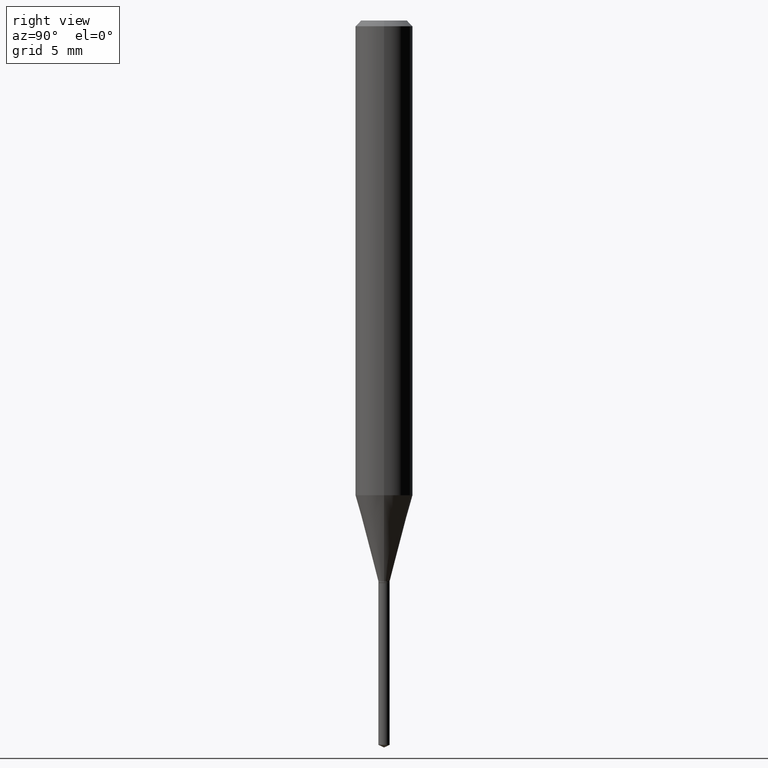
[diagram: clean part render]
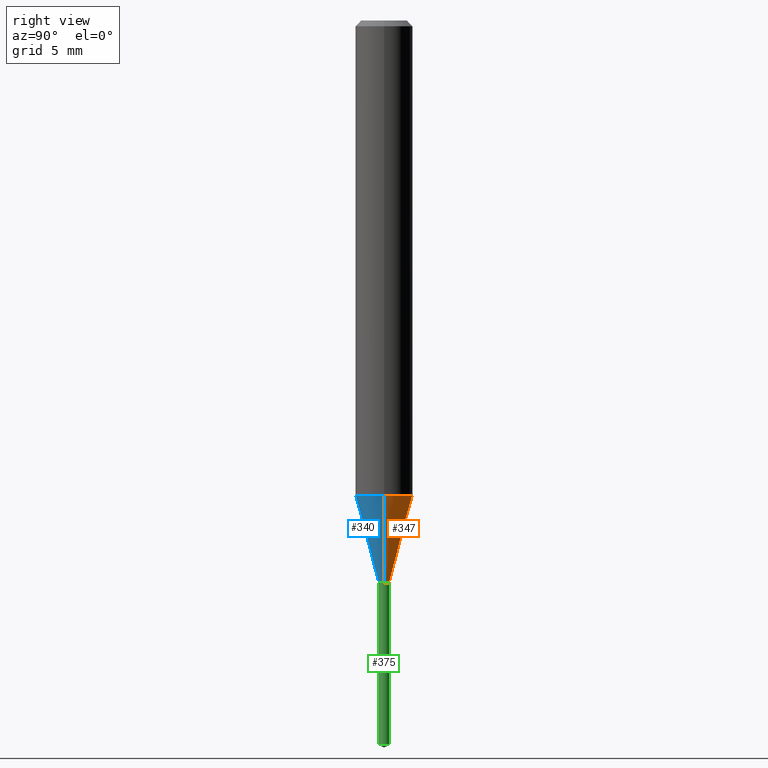
[diagram: same view with three faces highlighted in distinct colors, each labeled with its STEP entity id]
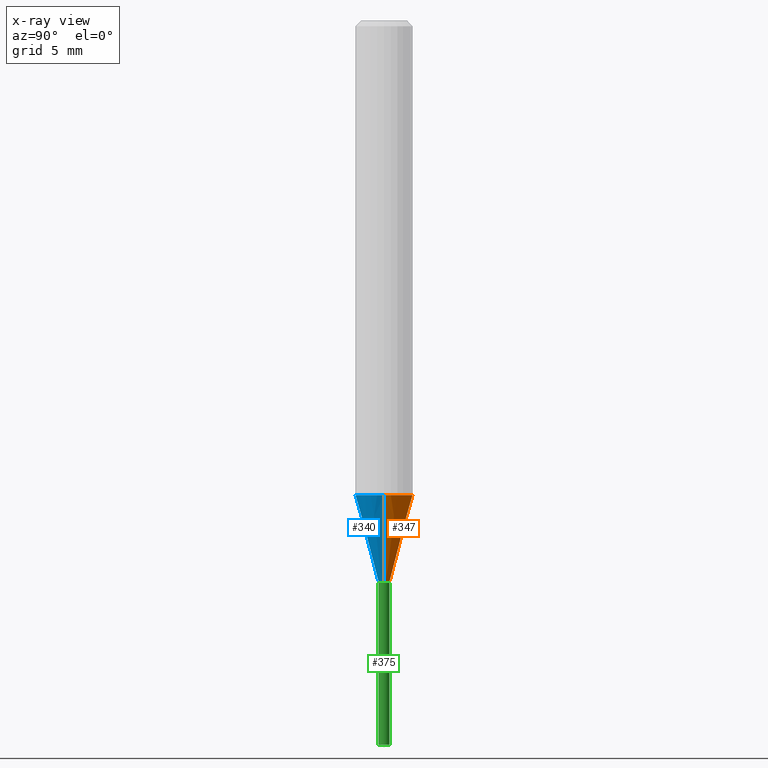
[diagram: x-ray of the same camera — body ghosted, the three highlighted faces saturated]
A machine part, right view with three faces highlighted in distinct colors.
The next image is the same camera in x-ray (body ghosted, the three faces saturated) — at least one of them is partly hidden behind the body in this view.
Their STEP definitions:

[orange] entity #347 — the highlighted conical surface has half-angle 15 deg.
#4 = CARTESIAN_POINT ( 'NONE',  ( -0.05905000000000011628, -2.991302175709703364E-15, -0.9769141891808567069 ) ) ;
#22 = CARTESIAN_POINT ( 'NONE',  ( -0.01159999999999999920, -3.946746507676818365E-15, -1.153999999999999915 ) ) ;
#27 = EDGE_CURVE ( 'NONE', #60, #389, #253, .T. ) ;
#32 = DIRECTION ( 'NONE',  ( 1.000000000000000000, -6.982962677686266711E-15, 0.000000000000000000 ) ) ;
#45 = ORIENTED_EDGE ( 'NONE', *, *, #481, .F. ) ;
#46 = LINE ( 'NONE', #266, #399 ) ;
#54 = DIRECTION ( 'NONE',  ( 1.000000000000000000, -6.982962677686266711E-15, 0.000000000000000000 ) ) ;
#60 = VERTEX_POINT ( 'NONE', #62 ) ;
#62 = CARTESIAN_POINT ( 'NONE',  ( 0.01159999999999999920, -4.110171832086150508E-15, -1.153999999999999915 ) ) ;
#66 = DIRECTION ( 'NONE',  ( -0.2588190451025213501, 5.211531920934551042E-15, 0.9659258262890682012 ) ) ;
#88 = EDGE_CURVE ( 'NONE', #389, #167, #216, .T. ) ;
#164 = DIRECTION ( 'NONE',  ( 0.2588190451025213501, 1.565188264969621968E-15, 0.9659258262890682012 ) ) ;
#167 = VERTEX_POINT ( 'NONE', #4 ) ;
#169 = EDGE_LOOP ( 'NONE', ( #444, #483, #364, #45 ) ) ;
#205 = CARTESIAN_POINT ( 'NONE',  ( 2.389013175961430346E-29, -3.410877661176043645E-15, -0.9769141891808567069 ) ) ;
#207 = DIRECTION ( 'NONE',  ( 1.000000000000000000, -6.982962677686266711E-15, 0.000000000000000000 ) ) ;
#216 = LINE ( 'NONE', #22, #343 ) ;
#226 = CIRCLE ( 'NONE', #473, 0.05905000000000011628 ) ;
#253 = CIRCLE ( 'NONE', #417, 0.01159999999999999920 ) ;
#257 = CARTESIAN_POINT ( 'NONE',  ( 2.822071002337647144E-29, -4.029169465024989587E-15, -1.153999999999999915 ) ) ;
#266 = CARTESIAN_POINT ( 'NONE',  ( 0.01159999999999999920, -4.110171832086150508E-15, -1.153999999999999915 ) ) ;
#276 = FACE_OUTER_BOUND ( 'NONE', #169, .T. ) ;
#287 = CARTESIAN_POINT ( 'NONE',  ( -0.01159999999999999920, -3.951983729685082876E-15, -1.153999999999999915 ) ) ;
#315 = DIRECTION ( 'NONE',  ( -2.445468806185136597E-29, 3.491481338843145583E-15, 1.000000000000000000 ) ) ;
#327 = VERTEX_POINT ( 'NONE', #391 ) ;
#341 = EDGE_CURVE ( 'NONE', #327, #167, #226, .T. ) ;
#343 = VECTOR ( 'NONE', #66, 39.37007874015747433 ) ;
#347 = ADVANCED_FACE ( 'NONE', ( #276 ), #490, .T. ) ;
#364 = ORIENTED_EDGE ( 'NONE', *, *, #341, .F. ) ;
#382 = AXIS2_PLACEMENT_3D ( 'NONE', #443, #315, #207 ) ;
#389 = VERTEX_POINT ( 'NONE', #287 ) ;
#391 = CARTESIAN_POINT ( 'NONE',  ( 0.05905000000000011628, -3.823221607293418566E-15, -0.9769141891808567069 ) ) ;
#399 = VECTOR ( 'NONE', #164, 39.37007874015747433 ) ;
#405 = DIRECTION ( 'NONE',  ( -2.445468806185136597E-29, 3.491481338843145583E-15, 1.000000000000000000 ) ) ;
#417 = AXIS2_PLACEMENT_3D ( 'NONE', #257, #405, #32 ) ;
#443 = CARTESIAN_POINT ( 'NONE',  ( 2.822071002337647144E-29, -4.029169465024989587E-15, -1.153999999999999915 ) ) ;
#444 = ORIENTED_EDGE ( 'NONE', *, *, #27, .T. ) ;
#463 = DIRECTION ( 'NONE',  ( -2.445468806185136597E-29, 3.491481338843145583E-15, 1.000000000000000000 ) ) ;
#473 = AXIS2_PLACEMENT_3D ( 'NONE', #205, #463, #54 ) ;
#481 = EDGE_CURVE ( 'NONE', #60, #327, #46, .T. ) ;
#483 = ORIENTED_EDGE ( 'NONE', *, *, #88, .T. ) ;
#490 = CONICAL_SURFACE ( 'NONE', #382, 0.01159999999999999920, 0.2617993877991500740 ) ;

[blue] entity #340 — the highlighted conical surface has half-angle 15 deg.
#4 = CARTESIAN_POINT ( 'NONE',  ( -0.05905000000000011628, -2.991302175709703364E-15, -0.9769141891808567069 ) ) ;
#5 = CIRCLE ( 'NONE', #446, 0.05905000000000011628 ) ;
#16 = ORIENTED_EDGE ( 'NONE', *, *, #481, .T. ) ;
#22 = CARTESIAN_POINT ( 'NONE',  ( -0.01159999999999999920, -3.946746507676818365E-15, -1.153999999999999915 ) ) ;
#46 = LINE ( 'NONE', #266, #399 ) ;
#60 = VERTEX_POINT ( 'NONE', #62 ) ;
#62 = CARTESIAN_POINT ( 'NONE',  ( 0.01159999999999999920, -4.110171832086150508E-15, -1.153999999999999915 ) ) ;
#64 = CARTESIAN_POINT ( 'NONE',  ( 2.822071002337647144E-29, -4.029169465024989587E-15, -1.153999999999999915 ) ) ;
#66 = DIRECTION ( 'NONE',  ( -0.2588190451025213501, 5.211531920934551042E-15, 0.9659258262890682012 ) ) ;
#78 = DIRECTION ( 'NONE',  ( -2.445468806185136597E-29, 3.491481338843145583E-15, 1.000000000000000000 ) ) ;
#88 = EDGE_CURVE ( 'NONE', #389, #167, #216, .T. ) ;
#94 = EDGE_LOOP ( 'NONE', ( #281, #288, #16, #470 ) ) ;
#123 = DIRECTION ( 'NONE',  ( 1.000000000000000000, -6.982962677686266711E-15, 0.000000000000000000 ) ) ;
#127 = FACE_OUTER_BOUND ( 'NONE', #94, .T. ) ;
#164 = DIRECTION ( 'NONE',  ( 0.2588190451025213501, 1.565188264969621968E-15, 0.9659258262890682012 ) ) ;
#167 = VERTEX_POINT ( 'NONE', #4 ) ;
#186 = CIRCLE ( 'NONE', #422, 0.01159999999999999920 ) ;
#196 = DIRECTION ( 'NONE',  ( 1.000000000000000000, -6.982962677686266711E-15, 0.000000000000000000 ) ) ;
#203 = AXIS2_PLACEMENT_3D ( 'NONE', #64, #242, #123 ) ;
#216 = LINE ( 'NONE', #22, #343 ) ;
#233 = CARTESIAN_POINT ( 'NONE',  ( 2.389013175961430346E-29, -3.410877661176043645E-15, -0.9769141891808567069 ) ) ;
#242 = DIRECTION ( 'NONE',  ( -2.445468806185136597E-29, 3.491481338843145583E-15, 1.000000000000000000 ) ) ;
#254 = CONICAL_SURFACE ( 'NONE', #203, 0.01159999999999999920, 0.2617993877991500740 ) ;
#266 = CARTESIAN_POINT ( 'NONE',  ( 0.01159999999999999920, -4.110171832086150508E-15, -1.153999999999999915 ) ) ;
#269 = EDGE_CURVE ( 'NONE', #167, #327, #5, .T. ) ;
#281 = ORIENTED_EDGE ( 'NONE', *, *, #88, .F. ) ;
#287 = CARTESIAN_POINT ( 'NONE',  ( -0.01159999999999999920, -3.951983729685082876E-15, -1.153999999999999915 ) ) ;
#288 = ORIENTED_EDGE ( 'NONE', *, *, #439, .T. ) ;
#298 = DIRECTION ( 'NONE',  ( 1.000000000000000000, -6.982962677686266711E-15, 0.000000000000000000 ) ) ;
#313 = CARTESIAN_POINT ( 'NONE',  ( 2.822071002337647144E-29, -4.029169465024989587E-15, -1.153999999999999915 ) ) ;
#327 = VERTEX_POINT ( 'NONE', #391 ) ;
#340 = ADVANCED_FACE ( 'NONE', ( #127 ), #254, .T. ) ;
#343 = VECTOR ( 'NONE', #66, 39.37007874015747433 ) ;
#389 = VERTEX_POINT ( 'NONE', #287 ) ;
#391 = CARTESIAN_POINT ( 'NONE',  ( 0.05905000000000011628, -3.823221607293418566E-15, -0.9769141891808567069 ) ) ;
#399 = VECTOR ( 'NONE', #164, 39.37007874015747433 ) ;
#422 = AXIS2_PLACEMENT_3D ( 'NONE', #313, #464, #298 ) ;
#439 = EDGE_CURVE ( 'NONE', #389, #60, #186, .T. ) ;
#446 = AXIS2_PLACEMENT_3D ( 'NONE', #233, #78, #196 ) ;
#464 = DIRECTION ( 'NONE',  ( -2.445468806185136597E-29, 3.491481338843145583E-15, 1.000000000000000000 ) ) ;
#470 = ORIENTED_EDGE ( 'NONE', *, *, #269, .F. ) ;
#481 = EDGE_CURVE ( 'NONE', #60, #327, #46, .T. ) ;

[green] entity #375 — the highlighted cylindrical surface (edge-blend (fillet) strip) has radius 0.2946 mm, axis along (-0, 0, 1).
#12 = CYLINDRICAL_SURFACE ( 'NONE', #175, 0.01159999999999999920 ) ;
#20 = CIRCLE ( 'NONE', #113, 0.01159999999999999920 ) ;
#43 = EDGE_CURVE ( 'NONE', #160, #204, #20, .T. ) ;
#58 = ORIENTED_EDGE ( 'NONE', *, *, #294, .T. ) ;
#84 = CARTESIAN_POINT ( 'NONE',  ( 8.242295734819991627E-17, 0.01159999999999595729, -1.157499999999999973 ) ) ;
#113 = AXIS2_PLACEMENT_3D ( 'NONE', #335, #367, #486 ) ;
#114 = EDGE_CURVE ( 'NONE', #361, #210, #301, .T. ) ;
#122 = VECTOR ( 'NONE', #235, 39.37007874015748143 ) ;
#138 = VECTOR ( 'NONE', #219, 39.37007874015748143 ) ;
#142 = CARTESIAN_POINT ( 'NONE',  ( -8.100236706113237413E-17, -0.01160000000000404284, -1.157499999999999973 ) ) ;
#160 = VERTEX_POINT ( 'NONE', #234 ) ;
#161 = CARTESIAN_POINT ( 'NONE',  ( 8.242295734820810070E-17, 0.01159999999999595729, -1.157499999999999973 ) ) ;
#166 = FACE_OUTER_BOUND ( 'NONE', #280, .T. ) ;
#175 = AXIS2_PLACEMENT_3D ( 'NONE', #318, #352, #354 ) ;
#204 = VERTEX_POINT ( 'NONE', #161 ) ;
#210 = VERTEX_POINT ( 'NONE', #306 ) ;
#215 = CARTESIAN_POINT ( 'NONE',  ( -8.100236706112417737E-17, -0.01160000000000520164, -1.490690831165402130 ) ) ;
#219 = DIRECTION ( 'NONE',  ( -2.445457056059012515E-29, 3.491498165692530705E-15, 1.000000000000000000 ) ) ;
#234 = CARTESIAN_POINT ( 'NONE',  ( -8.100236706113237413E-17, -0.01160000000000404284, -1.157499999999999973 ) ) ;
#235 = DIRECTION ( 'NONE',  ( -2.445457056059012515E-29, 3.491498165692530705E-15, 1.000000000000000000 ) ) ;
#237 = LINE ( 'NONE', #84, #138 ) ;
#244 = AXIS2_PLACEMENT_3D ( 'NONE', #450, #489, #419 ) ;
#272 = LINE ( 'NONE', #142, #122 ) ;
#280 = EDGE_LOOP ( 'NONE', ( #474, #58, #471, #351 ) ) ;
#294 = EDGE_CURVE ( 'NONE', #210, #204, #237, .T. ) ;
#301 = CIRCLE ( 'NONE', #244, 0.01159999999999999920 ) ;
#306 = CARTESIAN_POINT ( 'NONE',  ( 8.242295734820805139E-17, 0.01159999999999478983, -1.490690831165402130 ) ) ;
#318 = CARTESIAN_POINT ( 'NONE',  ( 2.830630143159295633E-29, -4.041389649710940900E-15, -1.157499999999999973 ) ) ;
#335 = CARTESIAN_POINT ( 'NONE',  ( 2.830630143159295633E-29, -4.041389649710940900E-15, -1.157499999999999973 ) ) ;
#351 = ORIENTED_EDGE ( 'NONE', *, *, #370, .F. ) ;
#352 = DIRECTION ( 'NONE',  ( -2.445457056059012515E-29, 3.491498165692530705E-15, 1.000000000000000000 ) ) ;
#354 = DIRECTION ( 'NONE',  ( -6.982962677686266711E-15, -1.000000000000000000, 0.000000000000000000 ) ) ;
#361 = VERTEX_POINT ( 'NONE', #215 ) ;
#367 = DIRECTION ( 'NONE',  ( -2.445457056059012515E-29, 3.491498165692530705E-15, 1.000000000000000000 ) ) ;
#370 = EDGE_CURVE ( 'NONE', #361, #160, #272, .T. ) ;
#375 = ADVANCED_FACE ( 'NONE', ( #166 ), #12, .T. ) ;
#419 = DIRECTION ( 'NONE',  ( -6.982962677686266711E-15, -1.000000000000000000, 0.000000000000000000 ) ) ;
#450 = CARTESIAN_POINT ( 'NONE',  ( 3.645434012246895852E-29, -5.204724825550511922E-15, -1.490690831165402130 ) ) ;
#471 = ORIENTED_EDGE ( 'NONE', *, *, #43, .F. ) ;
#474 = ORIENTED_EDGE ( 'NONE', *, *, #114, .T. ) ;
#486 = DIRECTION ( 'NONE',  ( -6.982962677686266711E-15, -1.000000000000000000, 0.000000000000000000 ) ) ;
#489 = DIRECTION ( 'NONE',  ( -2.445457056059012515E-29, 3.491498165692530705E-15, 1.000000000000000000 ) ) ;